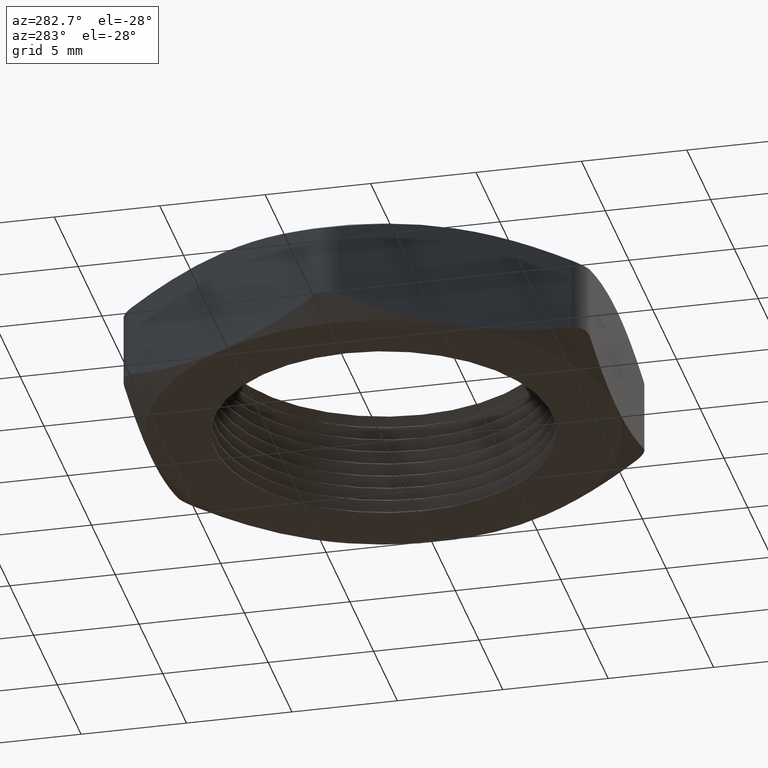
[diagram: clean part render]
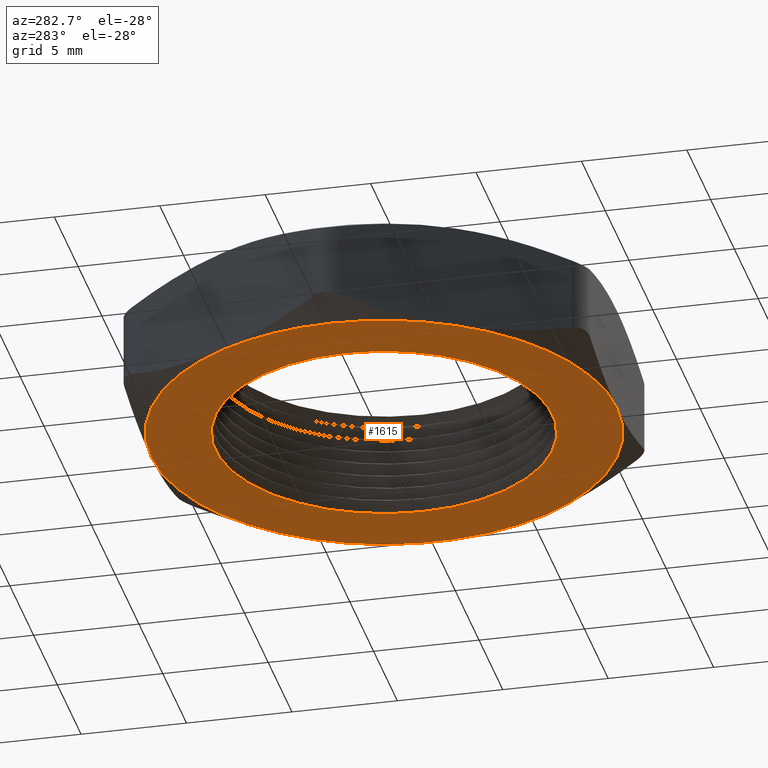
[diagram: same view with one face highlighted and labeled with its STEP entity id]
A machine part, auxiliary view. The second image highlights one B-rep face of the part: STEP entity #1615.
In plain terms, the highlighted planar face has unit normal (0, 0, -1).
Its self-contained STEP definition (entity closure, byte-faithful):
#48 = CARTESIAN_POINT ( 'NONE',  ( 5.914624404477002600E-017, -0.4350000000000000500, 0.0000000000000000000 ) ) ;
#71 = DIRECTION ( 'NONE',  ( 1.000000000000000000, 0.0000000000000000000, 0.0000000000000000000 ) ) ;
#78 = CARTESIAN_POINT ( 'NONE',  ( -0.3767210506462309600, -0.2174999999999998300, 0.0000000000000000000 ) ) ;
#79 = DIRECTION ( 'NONE',  ( 0.0000000000000000000, 0.0000000000000000000, 1.000000000000000000 ) ) ;
#80 = CARTESIAN_POINT ( 'NONE',  ( 0.0000000000000000000, 0.0000000000000000000, 0.0000000000000000000 ) ) ;
#104 = CIRCLE ( 'NONE', #112, 0.3150000000000000000 ) ;
#112 = AXIS2_PLACEMENT_3D ( 'NONE', #80, #79, #71 ) ;
#140 = CARTESIAN_POINT ( 'NONE',  ( 0.0000000000000000000, 0.4350000000000000500, 0.0000000000000000000 ) ) ;
#191 = DIRECTION ( 'NONE',  ( -1.000000000000000000, 0.0000000000000000000, 0.0000000000000000000 ) ) ;
#192 = DIRECTION ( 'NONE',  ( 0.0000000000000000000, 0.0000000000000000000, -1.000000000000000000 ) ) ;
#193 = CARTESIAN_POINT ( 'NONE',  ( 0.0000000000000000000, 0.0000000000000000000, 0.0000000000000000000 ) ) ;
#194 = AXIS2_PLACEMENT_3D ( 'NONE', #193, #192, #191 ) ;
#195 = CARTESIAN_POINT ( 'NONE',  ( 0.0000000000000000000, 0.0000000000000000000, 0.0000000000000000000 ) ) ;
#198 = CIRCLE ( 'NONE', #246, 0.4350000000000001600 ) ;
#199 = DIRECTION ( 'NONE',  ( -1.000000000000000000, 0.0000000000000000000, 0.0000000000000000000 ) ) ;
#200 = DIRECTION ( 'NONE',  ( 0.0000000000000000000, 0.0000000000000000000, -1.000000000000000000 ) ) ;
#201 = AXIS2_PLACEMENT_3D ( 'NONE', #251, #200, #199 ) ;
#202 = CIRCLE ( 'NONE', #201, 0.4350000000000001600 ) ;
#204 = CARTESIAN_POINT ( 'NONE',  ( 0.3767210506462308500, -0.2175000000000000300, 0.0000000000000000000 ) ) ;
#218 = DIRECTION ( 'NONE',  ( -1.000000000000000000, 0.0000000000000000000, 0.0000000000000000000 ) ) ;
#219 = DIRECTION ( 'NONE',  ( 0.0000000000000000000, 0.0000000000000000000, -1.000000000000000000 ) ) ;
#243 = DIRECTION ( 'NONE',  ( -1.000000000000000000, 0.0000000000000000000, 0.0000000000000000000 ) ) ;
#244 = DIRECTION ( 'NONE',  ( 0.0000000000000000000, 0.0000000000000000000, -1.000000000000000000 ) ) ;
#245 = CARTESIAN_POINT ( 'NONE',  ( 0.0000000000000000000, 0.0000000000000000000, 0.0000000000000000000 ) ) ;
#246 = AXIS2_PLACEMENT_3D ( 'NONE', #245, #244, #243 ) ;
#247 = CARTESIAN_POINT ( 'NONE',  ( 0.0000000000000000000, 0.0000000000000000000, 0.0000000000000000000 ) ) ;
#249 = AXIS2_PLACEMENT_3D ( 'NONE', #195, #219, #218 ) ;
#250 = CIRCLE ( 'NONE', #249, 0.4350000000000001600 ) ;
#251 = CARTESIAN_POINT ( 'NONE',  ( 0.0000000000000000000, 0.0000000000000000000, 0.0000000000000000000 ) ) ;
#259 = DIRECTION ( 'NONE',  ( -1.000000000000000000, 0.0000000000000000000, 0.0000000000000000000 ) ) ;
#260 = DIRECTION ( 'NONE',  ( 0.0000000000000000000, 0.0000000000000000000, -1.000000000000000000 ) ) ;
#261 = AXIS2_PLACEMENT_3D ( 'NONE', #247, #260, #259 ) ;
#262 = CIRCLE ( 'NONE', #261, 0.4350000000000001600 ) ;
#343 = CIRCLE ( 'NONE', #194, 0.4350000000000000500 ) ;
#707 = CARTESIAN_POINT ( 'NONE',  ( 0.3150000000000000000, 3.857637417314162700E-017, 0.0000000000000000000 ) ) ;
#892 = CARTESIAN_POINT ( 'NONE',  ( -0.3150000000000000000, 0.0000000000000000000, 0.0000000000000000000 ) ) ;
#893 = DIRECTION ( 'NONE',  ( 1.000000000000000000, 0.0000000000000000000, 0.0000000000000000000 ) ) ;
#894 = DIRECTION ( 'NONE',  ( 0.0000000000000000000, 0.0000000000000000000, 1.000000000000000000 ) ) ;
#895 = CARTESIAN_POINT ( 'NONE',  ( 0.0000000000000000000, 0.0000000000000000000, 0.0000000000000000000 ) ) ;
#896 = AXIS2_PLACEMENT_3D ( 'NONE', #895, #894, #893 ) ;
#897 = CIRCLE ( 'NONE', #896, 0.3150000000000000000 ) ;
#1034 = FACE_OUTER_BOUND ( 'NONE', #1619, .T. ) ;
#1066 = AXIS2_PLACEMENT_3D ( 'NONE', #1137, #1129, #1128 ) ;
#1067 = CIRCLE ( 'NONE', #1066, 0.4350000000000001600 ) ;
#1068 = DIRECTION ( 'NONE',  ( -1.000000000000000000, 0.0000000000000000000, 0.0000000000000000000 ) ) ;
#1069 = DIRECTION ( 'NONE',  ( 0.0000000000000000000, 0.0000000000000000000, -1.000000000000000000 ) ) ;
#1070 = CARTESIAN_POINT ( 'NONE',  ( -0.2511473670974872500, 0.4350000000000000500, 0.0000000000000000000 ) ) ;
#1079 = FACE_BOUND ( 'NONE', #1616, .T. ) ;
#1081 = PLANE ( 'NONE',  #1136 ) ;
#1128 = DIRECTION ( 'NONE',  ( -1.000000000000000000, 0.0000000000000000000, 0.0000000000000000000 ) ) ;
#1129 = DIRECTION ( 'NONE',  ( 0.0000000000000000000, 0.0000000000000000000, -1.000000000000000000 ) ) ;
#1136 = AXIS2_PLACEMENT_3D ( 'NONE', #1070, #1069, #1068 ) ;
#1137 = CARTESIAN_POINT ( 'NONE',  ( 0.0000000000000000000, 0.0000000000000000000, 0.0000000000000000000 ) ) ;
#1221 = CARTESIAN_POINT ( 'NONE',  ( 0.3767210506462309000, 0.2174999999999999400, 0.0000000000000000000 ) ) ;
#1352 = EDGE_CURVE ( 'NONE', #1353, #1354, #2248, .T. ) ;
#1353 = VERTEX_POINT ( 'NONE', #2244 ) ;
#1354 = VERTEX_POINT ( 'NONE', #2243 ) ;
#1499 = VERTEX_POINT ( 'NONE', #707 ) ;
#1590 = EDGE_CURVE ( 'NONE', #1591, #1499, #897, .T. ) ;
#1591 = VERTEX_POINT ( 'NONE', #892 ) ;
#1615 = ADVANCED_FACE ( 'NONE', ( #1079, #1034 ), #1081, .T. ) ;
#1616 = EDGE_LOOP ( 'NONE', ( #1617, #1618 ) ) ;
#1617 = ORIENTED_EDGE ( 'NONE', *, *, #1590, .T. ) ;
#1618 = ORIENTED_EDGE ( 'NONE', *, *, #1721, .T. ) ;
#1619 = EDGE_LOOP ( 'NONE', ( #1620, #1784, #1785, #1787, #1789, #1791, #1793 ) ) ;
#1620 = ORIENTED_EDGE ( 'NONE', *, *, #1621, .T. ) ;
#1621 = EDGE_CURVE ( 'NONE', #1714, #1353, #1067, .T. ) ;
#1691 = VERTEX_POINT ( 'NONE', #1221 ) ;
#1702 = VERTEX_POINT ( 'NONE', #48 ) ;
#1714 = VERTEX_POINT ( 'NONE', #78 ) ;
#1721 = EDGE_CURVE ( 'NONE', #1499, #1591, #104, .T. ) ;
#1753 = VERTEX_POINT ( 'NONE', #140 ) ;
#1784 = ORIENTED_EDGE ( 'NONE', *, *, #1352, .T. ) ;
#1785 = ORIENTED_EDGE ( 'NONE', *, *, #1786, .T. ) ;
#1786 = EDGE_CURVE ( 'NONE', #1354, #1753, #343, .T. ) ;
#1787 = ORIENTED_EDGE ( 'NONE', *, *, #1788, .T. ) ;
#1788 = EDGE_CURVE ( 'NONE', #1753, #1691, #250, .T. ) ;
#1789 = ORIENTED_EDGE ( 'NONE', *, *, #1790, .T. ) ;
#1790 = EDGE_CURVE ( 'NONE', #1691, #1851, #202, .T. ) ;
#1791 = ORIENTED_EDGE ( 'NONE', *, *, #1792, .T. ) ;
#1792 = EDGE_CURVE ( 'NONE', #1851, #1702, #198, .T. ) ;
#1793 = ORIENTED_EDGE ( 'NONE', *, *, #1794, .T. ) ;
#1794 = EDGE_CURVE ( 'NONE', #1702, #1714, #262, .T. ) ;
#1851 = VERTEX_POINT ( 'NONE', #204 ) ;
#2206 = CARTESIAN_POINT ( 'NONE',  ( 0.0000000000000000000, 0.0000000000000000000, 0.0000000000000000000 ) ) ;
#2243 = CARTESIAN_POINT ( 'NONE',  ( -0.3767210506462308500, 0.2175000000000000300, 0.0000000000000000000 ) ) ;
#2244 = CARTESIAN_POINT ( 'NONE',  ( -0.4350000000000001600, 0.0000000000000000000, 0.0000000000000000000 ) ) ;
#2245 = DIRECTION ( 'NONE',  ( -1.000000000000000000, 0.0000000000000000000, 0.0000000000000000000 ) ) ;
#2246 = DIRECTION ( 'NONE',  ( 0.0000000000000000000, 0.0000000000000000000, -1.000000000000000000 ) ) ;
#2247 = AXIS2_PLACEMENT_3D ( 'NONE', #2206, #2246, #2245 ) ;
#2248 = CIRCLE ( 'NONE', #2247, 0.4350000000000001600 ) ;